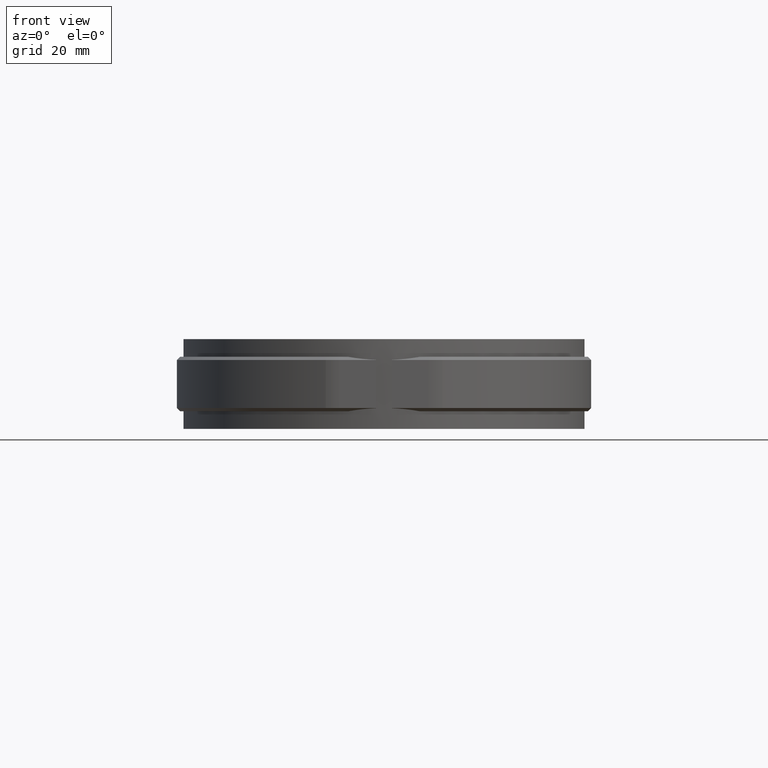
[diagram: clean part render]
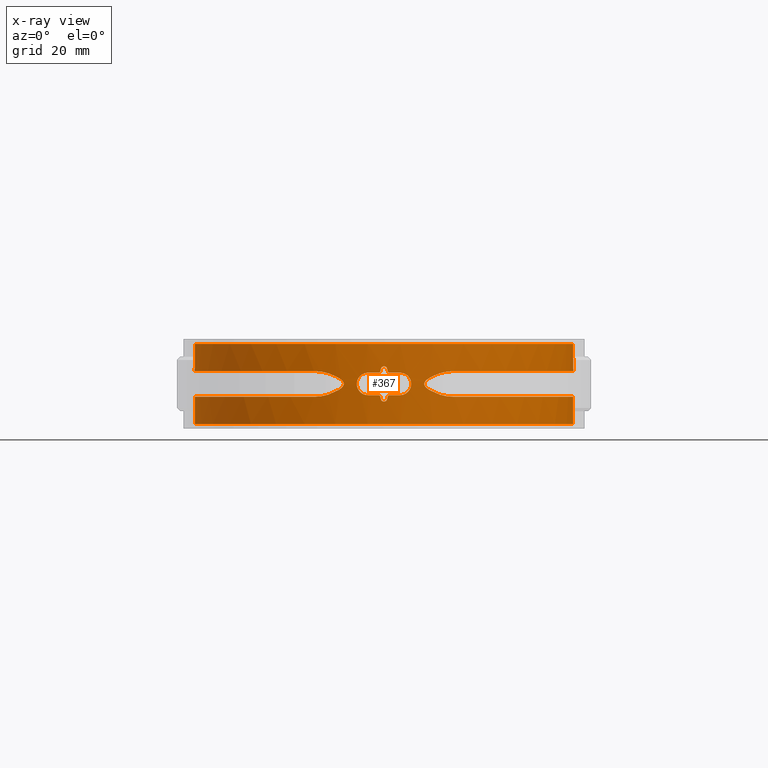
[diagram: x-ray — body ghosted, one internal face saturated and labeled with its STEP entity id]
A machine part, front view, then the same camera in x-ray: the body is ghosted and one INTERNAL B-rep face — a face not visible from any outside direction — is saturated and labeled: STEP entity #367.
In plain terms, the highlighted cylindrical surface (partial cylindrical patch) has radius 59.15 mm, axis along (0, 0, -1).
Its self-contained STEP definition (entity closure, byte-faithful):
#367 = ADVANCED_FACE( '', ( #701, #702 ), #703, .F. );
#701 = FACE_BOUND( '', #1406, .T. );
#702 = FACE_OUTER_BOUND( '', #1407, .T. );
#703 = CYLINDRICAL_SURFACE( '', #1408, 59.1500000000000 );
#1406 = EDGE_LOOP( '', ( #2817, #2818, #2819, #2820, #2821, #2822, #2823, #2824, #2825, #2826, #2827, #2828, #2829, #2830, #2831, #2832 ) );
#1407 = EDGE_LOOP( '', ( #2833, #2834, #2835, #2836, #2837, #2838, #2839, #2840, #2841, #2842, #2843, #2844, #2845, #2846, #2847, #2848 ) );
#1408 = AXIS2_PLACEMENT_3D( '', #2849, #2850, #2851 );
#2817 = ORIENTED_EDGE( '', *, *, #5997, .F. );
#2818 = ORIENTED_EDGE( '', *, *, #5998, .F. );
#2819 = ORIENTED_EDGE( '', *, *, #5999, .F. );
#2820 = ORIENTED_EDGE( '', *, *, #6000, .F. );
#2821 = ORIENTED_EDGE( '', *, *, #6001, .F. );
#2822 = ORIENTED_EDGE( '', *, *, #6002, .F. );
#2823 = ORIENTED_EDGE( '', *, *, #6003, .F. );
#2824 = ORIENTED_EDGE( '', *, *, #6004, .F. );
#2825 = ORIENTED_EDGE( '', *, *, #6005, .F. );
#2826 = ORIENTED_EDGE( '', *, *, #6006, .F. );
#2827 = ORIENTED_EDGE( '', *, *, #6007, .F. );
#2828 = ORIENTED_EDGE( '', *, *, #6008, .F. );
#2829 = ORIENTED_EDGE( '', *, *, #6009, .F. );
#2830 = ORIENTED_EDGE( '', *, *, #6010, .F. );
#2831 = ORIENTED_EDGE( '', *, *, #5994, .F. );
#2832 = ORIENTED_EDGE( '', *, *, #5990, .F. );
#2833 = ORIENTED_EDGE( '', *, *, #6011, .F. );
#2834 = ORIENTED_EDGE( '', *, *, #6012, .F. );
#2835 = ORIENTED_EDGE( '', *, *, #6013, .T. );
#2836 = ORIENTED_EDGE( '', *, *, #6014, .T. );
#2837 = ORIENTED_EDGE( '', *, *, #6015, .T. );
#2838 = ORIENTED_EDGE( '', *, *, #6016, .T. );
#2839 = ORIENTED_EDGE( '', *, *, #6017, .T. );
#2840 = ORIENTED_EDGE( '', *, *, #6018, .T. );
#2841 = ORIENTED_EDGE( '', *, *, #6019, .T. );
#2842 = ORIENTED_EDGE( '', *, *, #6020, .T. );
#2843 = ORIENTED_EDGE( '', *, *, #6021, .F. );
#2844 = ORIENTED_EDGE( '', *, *, #6022, .F. );
#2845 = ORIENTED_EDGE( '', *, *, #6023, .F. );
#2846 = ORIENTED_EDGE( '', *, *, #6024, .F. );
#2847 = ORIENTED_EDGE( '', *, *, #6025, .F. );
#2848 = ORIENTED_EDGE( '', *, *, #6026, .F. );
#2849 = CARTESIAN_POINT( '', ( -3.46944695195361E-015, 0.000000000000000, -12.5000000000000 ) );
#2850 = DIRECTION( '', ( 0.000000000000000, 0.000000000000000, -1.00000000000000 ) );
#2851 = DIRECTION( '', ( -1.00000000000000, 6.16283340149655E-017, 0.000000000000000 ) );
#5990 = EDGE_CURVE( '', #6901, #6902, #6903, .T. );
#5994 = EDGE_CURVE( '', #6902, #6909, #6910, .T. );
#5997 = EDGE_CURVE( '', #6914, #6901, #6915, .T. );
#5998 = EDGE_CURVE( '', #6916, #6914, #6917, .T. );
#5999 = EDGE_CURVE( '', #6918, #6916, #6919, .T. );
#6000 = EDGE_CURVE( '', #6920, #6918, #6921, .T. );
#6001 = EDGE_CURVE( '', #6922, #6920, #6923, .T. );
#6002 = EDGE_CURVE( '', #6924, #6922, #6925, .T. );
#6003 = EDGE_CURVE( '', #6926, #6924, #6927, .T. );
#6004 = EDGE_CURVE( '', #6928, #6926, #6929, .T. );
#6005 = EDGE_CURVE( '', #6930, #6928, #6931, .T. );
#6006 = EDGE_CURVE( '', #6932, #6930, #6933, .T. );
#6007 = EDGE_CURVE( '', #6934, #6932, #6935, .T. );
#6008 = EDGE_CURVE( '', #6936, #6934, #6937, .T. );
#6009 = EDGE_CURVE( '', #6938, #6936, #6939, .T. );
#6010 = EDGE_CURVE( '', #6909, #6938, #6940, .T. );
#6011 = EDGE_CURVE( '', #6941, #6942, #6943, .T. );
#6012 = EDGE_CURVE( '', #6944, #6941, #6945, .T. );
#6013 = EDGE_CURVE( '', #6944, #6946, #6947, .T. );
#6014 = EDGE_CURVE( '', #6946, #6948, #6949, .T. );
#6015 = EDGE_CURVE( '', #6948, #6950, #6951, .T. );
#6016 = EDGE_CURVE( '', #6950, #6952, #6953, .T. );
#6017 = EDGE_CURVE( '', #6952, #6954, #6955, .T. );
#6018 = EDGE_CURVE( '', #6954, #6956, #6957, .T. );
#6019 = EDGE_CURVE( '', #6956, #6958, #6959, .T. );
#6020 = EDGE_CURVE( '', #6958, #6960, #6961, .T. );
#6021 = EDGE_CURVE( '', #6962, #6960, #6963, .T. );
#6022 = EDGE_CURVE( '', #6964, #6962, #6965, .T. );
#6023 = EDGE_CURVE( '', #6966, #6964, #6967, .T. );
#6024 = EDGE_CURVE( '', #6968, #6966, #6969, .T. );
#6025 = EDGE_CURVE( '', #6970, #6968, #6971, .T. );
#6026 = EDGE_CURVE( '', #6942, #6970, #6972, .T. );
#6901 = VERTEX_POINT( '', #8411 );
#6902 = VERTEX_POINT( '', #8412 );
#6903 = B_SPLINE_CURVE_WITH_KNOTS( '', 3, ( #8413, #8414, #8415, #8416, #8417, #8418 ), .UNSPECIFIED., .F., .F., ( 4, 2, 4 ), ( 0.00156361018298651, 0.00189944055253514, 0.00223527092208378 ), .UNSPECIFIED. );
#6909 = VERTEX_POINT( '', #8431 );
#6910 = ELLIPSE( '', #8432, 269.461386027890, 59.1500000000000 );
#6914 = VERTEX_POINT( '', #8437 );
#6915 = CIRCLE( '', #8438, 59.1500000000000 );
#6916 = VERTEX_POINT( '', #8439 );
#6917 = B_SPLINE_CURVE_WITH_KNOTS( '', 3, ( #8440, #8441, #8442, #8443, #8444, #8445, #8446, #8447, #8448, #8449, #8450, #8451, #8452, #8453, #8454, #8455, #8456, #8457, #8458, #8459, #8460, #8461, #8462, #8463, #8464, #8465, #8466, #8467, #8468, #8469, #8470, #8471, #8472, #8473 ), .UNSPECIFIED., .F., .F., ( 4, 2, 2, 2, 2, 2, 2, 2, 2, 2, 2, 2, 2, 2, 2, 2, 4 ), ( 0.0109529596146863, 0.0116388413501820, 0.0123247230856777, 0.0130106048211735, 0.0136964865566692, 0.0143823682921649, 0.0150682500276607, 0.0157541317631564, 0.0164400134986521, 0.0171258952341478, 0.0178117769696436, 0.0184976587051393, 0.0191835404406350, 0.0198694221761308, 0.0205553039116265, 0.0212411856471222, 0.0219270673826179 ), .UNSPECIFIED. );
#6918 = VERTEX_POINT( '', #8474 );
#6919 = CIRCLE( '', #8475, 59.1500000000000 );
#6920 = VERTEX_POINT( '', #8476 );
#6921 = B_SPLINE_CURVE_WITH_KNOTS( '', 3, ( #8477, #8478, #8479, #8480, #8481, #8482 ), .UNSPECIFIED., .F., .F., ( 4, 2, 4 ), ( 0.00245575856649450, 0.00279123489339493, 0.00312671122029536 ), .UNSPECIFIED. );
#6922 = VERTEX_POINT( '', #8483 );
#6923 = ELLIPSE( '', #8484, 269.461248569472, 59.1500000000000 );
#6924 = VERTEX_POINT( '', #8485 );
#6925 = B_SPLINE_CURVE_WITH_KNOTS( '', 3, ( #8486, #8487, #8488, #8489, #8490, #8491, #8492, #8493, #8494, #8495 ), .UNSPECIFIED., .F., .F., ( 4, 2, 2, 2, 4 ), ( 0.00178339464918345, 0.00245495384245690, 0.00312651303573035, 0.00379807222900380, 0.00446963142227725 ), .UNSPECIFIED. );
#6926 = VERTEX_POINT( '', #8496 );
#6927 = ELLIPSE( '', #8497, 269.461386027947, 59.1500000000000 );
#6928 = VERTEX_POINT( '', #8498 );
#6929 = B_SPLINE_CURVE_WITH_KNOTS( '', 3, ( #8499, #8500, #8501, #8502, #8503, #8504 ), .UNSPECIFIED., .F., .F., ( 4, 2, 4 ), ( 0.000000000000000, 0.000335831884350517, 0.000671663768701035 ), .UNSPECIFIED. );
#6930 = VERTEX_POINT( '', #8505 );
#6931 = CIRCLE( '', #8506, 59.1500000000000 );
#6932 = VERTEX_POINT( '', #8507 );
#6933 = B_SPLINE_CURVE_WITH_KNOTS( '', 3, ( #8508, #8509, #8510, #8511, #8512, #8513, #8514, #8515, #8516, #8517, #8518, #8519, #8520, #8521, #8522, #8523, #8524, #8525, #8526, #8527, #8528, #8529, #8530, #8531, #8532, #8533, #8534, #8535, #8536, #8537, #8538, #8539, #8540, #8541 ), .UNSPECIFIED., .F., .F., ( 4, 2, 2, 2, 2, 2, 2, 2, 2, 2, 2, 2, 2, 2, 2, 2, 4 ), ( 0.000000000000000, 0.000685986528971007, 0.00137197305794201, 0.00205795958691302, 0.00274394611588403, 0.00342993264485503, 0.00411591917382604, 0.00480190570279705, 0.00548789223176805, 0.00617387876073906, 0.00685986528971007, 0.00754585181868108, 0.00823183834765208, 0.00891782487662309, 0.00960381140559410, 0.0102897979345651, 0.0109757844635361 ), .UNSPECIFIED. );
#6934 = VERTEX_POINT( '', #8542 );
#6935 = CIRCLE( '', #8543, 59.1500000000000 );
#6936 = VERTEX_POINT( '', #8544 );
#6937 = B_SPLINE_CURVE_WITH_KNOTS( '', 3, ( #8545, #8546, #8547, #8548, #8549, #8550 ), .UNSPECIFIED., .F., .F., ( 4, 2, 4 ), ( 0.000891800028253569, 0.00122762944381523, 0.00156345885937690 ), .UNSPECIFIED. );
#6938 = VERTEX_POINT( '', #8551 );
#6939 = ELLIPSE( '', #8552, 269.461248569451, 59.1500000000000 );
#6940 = B_SPLINE_CURVE_WITH_KNOTS( '', 3, ( #8553, #8554, #8555, #8556, #8557, #8558, #8559, #8560, #8561, #8562, #8563, #8564 ), .UNSPECIFIED., .F., .F., ( 4, 2, 2, 2, 2, 4 ), ( 0.00491060943855163, 0.00558181655932745, 0.00591742011971536, 0.00625302368010327, 0.00692423080087910, 0.00759543792165492 ), .UNSPECIFIED. );
#6941 = VERTEX_POINT( '', #8565 );
#6942 = VERTEX_POINT( '', #8566 );
#6943 = B_SPLINE_CURVE_WITH_KNOTS( '', 3, ( #8567, #8568, #8569, #8570, #8571, #8572, #8573, #8574, #8575, #8576, #8577, #8578, #8579, #8580, #8581, #8582, #8583, #8584, #8585, #8586, #8587, #8588, #8589, #8590, #8591, #8592, #8593, #8594, #8595, #8596, #8597, #8598, #8599, #8600, #8601, #8602, #8603, #8604, #8605, #8606, #8607, #8608, #8609, #8610, #8611, #8612, #8613, #8614, #8615, #8616, #8617, #8618, #8619, #8620, #8621, #8622, #8623, #8624, #8625, #8626, #8627, #8628 ), .UNSPECIFIED., .F., .F., ( 4, 2, 2, 2, 2, 2, 2, 2, 2, 2, 2, 2, 2, 2, 2, 2, 2, 2, 2, 2, 2, 2, 2, 2, 2, 2, 2, 2, 2, 2, 4 ), ( 0.00468982118014729, 0.00961516792310667, 0.0120778412945864, 0.0145405146660661, 0.0243912081519848, 0.0293165548949442, 0.0317792282664239, 0.0342419016379036, 0.0440925951238223, 0.0490179418667817, 0.0514806152382614, 0.0539432886097411, 0.0637939820956599, 0.0687193288386193, 0.0711820022100990, 0.0736446755815787, 0.0834953690674975, 0.0884207158104569, 0.0908833891819366, 0.0933460625534163, 0.103196756039335, 0.108122102782295, 0.113047449525254, 0.122898143011173, 0.127823489754132, 0.132748836497092, 0.142599529983010, 0.147524876725970, 0.149987550097449, 0.152450223468929, 0.162300916954848 ), .UNSPECIFIED. );
#6944 = VERTEX_POINT( '', #8629 );
#6945 = LINE( '', #8630, #8631 );
#6946 = VERTEX_POINT( '', #8632 );
#6947 = CIRCLE( '', #8633, 59.1500000000000 );
#6948 = VERTEX_POINT( '', #8634 );
#6949 = LINE( '', #8635, #8636 );
#6950 = VERTEX_POINT( '', #8637 );
#6951 = B_SPLINE_CURVE_WITH_KNOTS( '', 3, ( #8638, #8639, #8640, #8641, #8642, #8643, #8644, #8645, #8646, #8647, #8648, #8649, #8650, #8651, #8652, #8653, #8654, #8655, #8656, #8657, #8658, #8659, #8660, #8661, #8662, #8663, #8664, #8665, #8666, #8667, #8668, #8669, #8670, #8671, #8672, #8673, #8674, #8675, #8676, #8677, #8678, #8679, #8680, #8681, #8682, #8683, #8684, #8685, #8686, #8687, #8688, #8689, #8690, #8691, #8692, #8693, #8694, #8695, #8696, #8697, #8698, #8699 ), .UNSPECIFIED., .F., .F., ( 4, 2, 2, 2, 2, 2, 2, 2, 2, 2, 2, 2, 2, 2, 2, 2, 2, 2, 2, 2, 2, 2, 2, 2, 2, 2, 2, 2, 2, 2, 4 ), ( 0.00468982118014712, 0.00961516792310649, 0.0120778412945862, 0.0145405146660659, 0.0243912081519846, 0.0293165548949440, 0.0317792282664237, 0.0342419016379033, 0.0440925951238221, 0.0490179418667815, 0.0514806152382612, 0.0539432886097409, 0.0637939820956598, 0.0687193288386192, 0.0711820022100989, 0.0736446755815786, 0.0834953690674974, 0.0884207158104568, 0.0908833891819365, 0.0933460625534162, 0.103196756039335, 0.108122102782294, 0.113047449525254, 0.122898143011173, 0.127823489754132, 0.132748836497091, 0.142599529983010, 0.147524876725970, 0.149987550097449, 0.152450223468929, 0.162300916954848 ), .UNSPECIFIED. );
#6952 = VERTEX_POINT( '', #8700 );
#6953 = B_SPLINE_CURVE_WITH_KNOTS( '', 3, ( #8701, #8702, #8703, #8704, #8705, #8706, #8707, #8708 ), .UNSPECIFIED., .F., .F., ( 4, 2, 2, 4 ), ( 0.000000000000000, 0.00237770030442117, 0.00356655045663175, 0.00475540060884234 ), .UNSPECIFIED. );
#6954 = VERTEX_POINT( '', #8709 );
#6955 = B_SPLINE_CURVE_WITH_KNOTS( '', 3, ( #8710, #8711, #8712, #8713, #8714, #8715, #8716, #8717, #8718, #8719, #8720, #8721, #8722, #8723, #8724, #8725, #8726, #8727, #8728, #8729, #8730, #8731, #8732, #8733, #8734, #8735, #8736, #8737, #8738, #8739, #8740, #8741 ), .UNSPECIFIED., .F., .F., ( 4, 2, 2, 2, 2, 2, 2, 2, 2, 2, 2, 2, 2, 2, 2, 4 ), ( 0.000000000000000, 0.00156029649719092, 0.00312059299438184, 0.00390074124297730, 0.00468088949157276, 0.00546103774016822, 0.00585111186446594, 0.00624118598876367, 0.00663126011306140, 0.00702133423735913, 0.00741140836165685, 0.00780148248595458, 0.00858163073455004, 0.00936177898314549, 0.0109220754803364, 0.0124823719775273 ), .UNSPECIFIED. );
#6956 = VERTEX_POINT( '', #8742 );
#6957 = B_SPLINE_CURVE_WITH_KNOTS( '', 3, ( #8743, #8744, #8745, #8746, #8747, #8748 ), .UNSPECIFIED., .F., .F., ( 4, 2, 4 ), ( 0.000000000000000, 0.00237200404577442, 0.00474400809154884 ), .UNSPECIFIED. );
#6958 = VERTEX_POINT( '', #8749 );
#6959 = B_SPLINE_CURVE_WITH_KNOTS( '', 3, ( #8750, #8751, #8752, #8753, #8754, #8755, #8756, #8757, #8758, #8759, #8760, #8761, #8762, #8763, #8764, #8765, #8766, #8767, #8768, #8769, #8770, #8771, #8772, #8773, #8774, #8775, #8776, #8777, #8778, #8779, #8780, #8781, #8782, #8783, #8784, #8785, #8786, #8787, #8788, #8789, #8790, #8791, #8792, #8793, #8794, #8795, #8796, #8797, #8798, #8799, #8800, #8801, #8802, #8803, #8804, #8805, #8806, #8807, #8808, #8809 ), .UNSPECIFIED., .F., .F., ( 4, 2, 2, 2, 2, 2, 2, 2, 2, 2, 2, 2, 2, 2, 2, 2, 2, 2, 2, 2, 2, 2, 2, 2, 2, 2, 2, 2, 2, 4 ), ( 0.000000000000000, 0.00985053376518982, 0.0147758006477847, 0.0197010675303797, 0.0295516012955695, 0.0320142347368670, 0.0344768681781644, 0.0394021350607593, 0.0492526688259491, 0.0517153022672466, 0.0541779357085441, 0.0591032025911390, 0.0689537363563288, 0.0714163697976263, 0.0738790032389238, 0.0788042701215187, 0.0886548038867085, 0.0911174373280060, 0.0935800707693035, 0.0985053376518984, 0.108355871417088, 0.110818504858386, 0.113281138299683, 0.118206405182278, 0.128056938947468, 0.132982205830063, 0.137907472712658, 0.147758006477848, 0.152683273360443, 0.157608540243037 ), .UNSPECIFIED. );
#6960 = VERTEX_POINT( '', #8810 );
#6961 = LINE( '', #8811, #8812 );
#6962 = VERTEX_POINT( '', #8813 );
#6963 = CIRCLE( '', #8814, 59.1500000000000 );
#6964 = VERTEX_POINT( '', #8815 );
#6965 = LINE( '', #8816, #8817 );
#6966 = VERTEX_POINT( '', #8818 );
#6967 = B_SPLINE_CURVE_WITH_KNOTS( '', 3, ( #8819, #8820, #8821, #8822, #8823, #8824, #8825, #8826, #8827, #8828, #8829, #8830, #8831, #8832, #8833, #8834, #8835, #8836, #8837, #8838, #8839, #8840, #8841, #8842, #8843, #8844, #8845, #8846, #8847, #8848, #8849, #8850, #8851, #8852, #8853, #8854, #8855, #8856, #8857, #8858, #8859, #8860, #8861, #8862, #8863, #8864, #8865, #8866, #8867, #8868, #8869, #8870, #8871, #8872, #8873, #8874, #8875, #8876, #8877, #8878 ), .UNSPECIFIED., .F., .F., ( 4, 2, 2, 2, 2, 2, 2, 2, 2, 2, 2, 2, 2, 2, 2, 2, 2, 2, 2, 2, 2, 2, 2, 2, 2, 2, 2, 2, 2, 4 ), ( 0.000000000000000, 0.00985053376518984, 0.0147758006477848, 0.0197010675303797, 0.0295516012955695, 0.0320142347368670, 0.0344768681781644, 0.0394021350607593, 0.0492526688259491, 0.0517153022672466, 0.0541779357085441, 0.0591032025911390, 0.0689537363563288, 0.0714163697976263, 0.0738790032389237, 0.0788042701215187, 0.0886548038867085, 0.0911174373280059, 0.0935800707693034, 0.0985053376518983, 0.108355871417088, 0.110818504858386, 0.113281138299683, 0.118206405182278, 0.128056938947468, 0.132982205830063, 0.137907472712658, 0.147758006477848, 0.152683273360442, 0.157608540243037 ), .UNSPECIFIED. );
#6968 = VERTEX_POINT( '', #8879 );
#6969 = B_SPLINE_CURVE_WITH_KNOTS( '', 3, ( #8880, #8881, #8882, #8883, #8884, #8885 ), .UNSPECIFIED., .F., .F., ( 4, 2, 4 ), ( 0.000000000000000, 0.00237200404577442, 0.00474400809154884 ), .UNSPECIFIED. );
#6970 = VERTEX_POINT( '', #8886 );
#6971 = B_SPLINE_CURVE_WITH_KNOTS( '', 3, ( #8887, #8888, #8889, #8890, #8891, #8892, #8893, #8894, #8895, #8896, #8897, #8898, #8899, #8900, #8901, #8902, #8903, #8904, #8905, #8906, #8907, #8908, #8909, #8910, #8911, #8912, #8913, #8914, #8915, #8916, #8917, #8918 ), .UNSPECIFIED., .F., .F., ( 4, 2, 2, 2, 2, 2, 2, 2, 2, 2, 2, 2, 2, 2, 2, 4 ), ( 0.000000000000000, 0.00156029649719092, 0.00312059299438184, 0.00390074124297730, 0.00468088949157276, 0.00546103774016822, 0.00585111186446594, 0.00624118598876367, 0.00663126011306140, 0.00702133423735913, 0.00741140836165685, 0.00780148248595458, 0.00858163073455004, 0.00936177898314549, 0.0109220754803364, 0.0124823719775273 ), .UNSPECIFIED. );
#6972 = B_SPLINE_CURVE_WITH_KNOTS( '', 3, ( #8919, #8920, #8921, #8922, #8923, #8924, #8925, #8926 ), .UNSPECIFIED., .F., .F., ( 4, 2, 2, 4 ), ( 0.000000000000000, 0.00237770030442117, 0.00356655045663175, 0.00475540060884234 ), .UNSPECIFIED. );
#8411 = CARTESIAN_POINT( '', ( 1.65000000000025, -59.1269819963779, -3.49999999999744 ) );
#8412 = CARTESIAN_POINT( '', ( 1.16219512100909, -59.1385813365581, -3.89024390662627 ) );
#8413 = CARTESIAN_POINT( '', ( 1.65000000000041, -59.1269819963779, -3.50000000000000 ) );
#8414 = CARTESIAN_POINT( '', ( 1.53787534715059, -59.1301109515682, -3.49999999999991 ) );
#8415 = CARTESIAN_POINT( '', ( 1.42526288771543, -59.1328910190796, -3.53948763157794 ) );
#8416 = CARTESIAN_POINT( '', ( 1.25009841239619, -59.1368533871457, -3.67959848418016 ) );
#8417 = CARTESIAN_POINT( '', ( 1.18681797368062, -59.1380974467083, -3.78080900147757 ) );
#8418 = CARTESIAN_POINT( '', ( 1.16219512100909, -59.1385813365581, -3.89024390662627 ) );
#8431 = CARTESIAN_POINT( '', ( 0.975609999999952, -59.1419536803435, -4.71951199999997 ) );
#8432 = AXIS2_PLACEMENT_3D( '', #12340, #12341, #12342 );
#8437 = CARTESIAN_POINT( '', ( 5.00000000000000, -58.9382940031352, -3.50000000000000 ) );
#8438 = AXIS2_PLACEMENT_3D( '', #12347, #12348, #12349 );
#8439 = CARTESIAN_POINT( '', ( 5.00000000000000, -58.9382940031352, 3.50000000000002 ) );
#8440 = CARTESIAN_POINT( '', ( 5.00000000000000, -58.9382940031352, 3.50000000000002 ) );
#8441 = CARTESIAN_POINT( '', ( 5.22824489806631, -58.9189309640511, 3.50000000000002 ) );
#8442 = CARTESIAN_POINT( '', ( 5.45503924296903, -58.8983555755730, 3.47788774252241 ) );
#8443 = CARTESIAN_POINT( '', ( 5.90568353910331, -58.8548778317050, 3.38858395044697 ) );
#8444 = CARTESIAN_POINT( '', ( 6.12639761048374, -58.8322571120304, 3.32159434847437 ) );
#8445 = CARTESIAN_POINT( '', ( 6.54692724603367, -58.7869455594772, 3.14782094284269 ) );
#8446 = CARTESIAN_POINT( '', ( 6.74981081990076, -58.7639319309869, 3.03991232840227 ) );
#8447 = CARTESIAN_POINT( '', ( 7.13259335308676, -58.7187002083119, 2.78477116836985 ) );
#8448 = CARTESIAN_POINT( '', ( 7.30880384003798, -58.6969367199381, 2.64033602537134 ) );
#8449 = CARTESIAN_POINT( '', ( 7.63173601190476, -58.6558232345363, 2.31860196288441 ) );
#8450 = CARTESIAN_POINT( '', ( 7.77974522441628, -58.6362909403846, 2.13902933681913 ) );
#8451 = CARTESIAN_POINT( '', ( 8.03473718512942, -58.6018945885554, 1.75863590138232 ) );
#8452 = CARTESIAN_POINT( '', ( 8.14264526452255, -58.5869248586119, 1.55769352196802 ) );
#8453 = CARTESIAN_POINT( '', ( 8.31908357062688, -58.5621318331003, 1.13415722816629 ) );
#8454 = CARTESIAN_POINT( '', ( 8.38707340822236, -58.5523830033226, 0.911061996467562 ) );
#8455 = CARTESIAN_POINT( '', ( 8.47682747689804, -58.5394563661946, 0.462569919019083 ) );
#8456 = CARTESIAN_POINT( '', ( 8.49977997378194, -58.5361105681444, 0.234776655006030 ) );
#8457 = CARTESIAN_POINT( '', ( 8.50021690848461, -58.5360471210471, -0.228169972124670 ) );
#8458 = CARTESIAN_POINT( '', ( 8.47752000331168, -58.5393557952760, -0.457285626833753 ) );
#8459 = CARTESIAN_POINT( '', ( 8.38849806920354, -58.5521786313322, -0.905724214618023 ) );
#8460 = CARTESIAN_POINT( '', ( 8.32117424350995, -58.5618346136700, -1.12814021961073 ) );
#8461 = CARTESIAN_POINT( '', ( 8.14498362817257, -58.5865996265912, -1.55305398791663 ) );
#8462 = CARTESIAN_POINT( '', ( 8.03724483212294, -58.6015497722050, -1.75426833561602 ) );
#8463 = CARTESIAN_POINT( '', ( 7.78310958925717, -58.6358435201312, -2.13462281862332 ) );
#8464 = CARTESIAN_POINT( '', ( 7.63526385804589, -58.6553639513636, -2.31461556863497 ) );
#8465 = CARTESIAN_POINT( '', ( 7.31245262321469, -58.6964821014185, -2.63716205370049 ) );
#8466 = CARTESIAN_POINT( '', ( 7.13646180504674, -58.7182285162971, -2.78177334555648 ) );
#8467 = CARTESIAN_POINT( '', ( 6.75468829865985, -58.7633698248741, -3.03707111622665 ) );
#8468 = CARTESIAN_POINT( '', ( 6.55127538780570, -58.7864607081289, -3.14567998882509 ) );
#8469 = CARTESIAN_POINT( '', ( 6.13099741972316, -58.8317774883149, -3.32003053562552 ) );
#8470 = CARTESIAN_POINT( '', ( 5.91142691346631, -58.8543036063288, -3.38709053406309 ) );
#8471 = CARTESIAN_POINT( '', ( 5.45956351357300, -58.8979387362618, -3.47733844794017 ) );
#8472 = CARTESIAN_POINT( '', ( 5.23107764807910, -58.9186906491539, -3.50000000000000 ) );
#8473 = CARTESIAN_POINT( '', ( 5.00000000000000, -58.9382940031352, -3.50000000000000 ) );
#8474 = CARTESIAN_POINT( '', ( 1.65000000000001, -59.1269819963779, 3.50000000000002 ) );
#8475 = AXIS2_PLACEMENT_3D( '', #12350, #12351, #12352 );
#8476 = CARTESIAN_POINT( '', ( 1.16219499999994, -59.1385813389362, 3.89024400000002 ) );
#8477 = CARTESIAN_POINT( '', ( 1.16219499999994, -59.1385813389362, 3.89024400000001 ) );
#8478 = CARTESIAN_POINT( '', ( 1.18676331042299, -59.1380985210044, 3.78105150704262 ) );
#8479 = CARTESIAN_POINT( '', ( 1.25006723811850, -59.1368536848149, 3.67972459623765 ) );
#8480 = CARTESIAN_POINT( '', ( 1.42474336575442, -59.1329031773407, 3.53980225768696 ) );
#8481 = CARTESIAN_POINT( '', ( 1.53660862172912, -59.1301463008559, 3.50000000000001 ) );
#8482 = CARTESIAN_POINT( '', ( 1.64999999785401, -59.1269819964378, 3.50000000000001 ) );
#8483 = CARTESIAN_POINT( '', ( 0.975609757981783, -59.1419536843359, 4.71951218674747 ) );
#8484 = AXIS2_PLACEMENT_3D( '', #12353, #12354, #12355 );
#8485 = CARTESIAN_POINT( '', ( -0.975610000000050, -59.1419536803435, 4.71951200000002 ) );
#8486 = CARTESIAN_POINT( '', ( -0.975610000000050, -59.1419536803435, 4.71951200000002 ) );
#8487 = CARTESIAN_POINT( '', ( -0.926373046907988, -59.1427658967283, 4.93834300919890 ) );
#8488 = CARTESIAN_POINT( '', ( -0.799841406379386, -59.1448512763826, 5.14075097325568 ) );
#8489 = CARTESIAN_POINT( '', ( -0.449553759638256, -59.1485509560290, 5.42098282537313 ) );
#8490 = CARTESIAN_POINT( '', ( -0.224302080393067, -59.1499999987892, 5.49999995424814 ) );
#8491 = CARTESIAN_POINT( '', ( 0.224301441828264, -59.1500000012107, 5.50000005261897 ) );
#8492 = CARTESIAN_POINT( '', ( 0.449554852714761, -59.1485509458412, 5.42098203302658 ) );
#8493 = CARTESIAN_POINT( '', ( 0.799841229742383, -59.1448512768912, 5.14075071244304 ) );
#8494 = CARTESIAN_POINT( '', ( 0.926373449370451, -59.1427658898877, 4.93834013599613 ) );
#8495 = CARTESIAN_POINT( '', ( 0.975609757981783, -59.1419536843359, 4.71951218674747 ) );
#8496 = CARTESIAN_POINT( '', ( -1.16219512100915, -59.1385813365581, 3.89024390662631 ) );
#8497 = AXIS2_PLACEMENT_3D( '', #12356, #12357, #12358 );
#8498 = CARTESIAN_POINT( '', ( -1.65000000000006, -59.1269819963779, 3.50000000000002 ) );
#8499 = CARTESIAN_POINT( '', ( -1.65000000000006, -59.1269819963779, 3.50000000000002 ) );
#8500 = CARTESIAN_POINT( '', ( -1.53648893019326, -59.1301496409770, 3.50000000000002 ) );
#8501 = CARTESIAN_POINT( '', ( -1.42634104271876, -59.1328666299402, 3.53862532562844 ) );
#8502 = CARTESIAN_POINT( '', ( -1.24902074334823, -59.1368777652923, 3.68046040142328 ) );
#8503 = CARTESIAN_POINT( '', ( -1.18712097375993, -59.1380914921317, 3.77946233440469 ) );
#8504 = CARTESIAN_POINT( '', ( -1.16219512100915, -59.1385813365581, 3.89024390662631 ) );
#8505 = CARTESIAN_POINT( '', ( -5.00000000000000, -58.9382940031352, 3.50000000000002 ) );
#8506 = AXIS2_PLACEMENT_3D( '', #12359, #12360, #12361 );
#8507 = CARTESIAN_POINT( '', ( -5.00000000000000, -58.9382940031352, -3.49999999999997 ) );
#8508 = CARTESIAN_POINT( '', ( -5.00000000000000, -58.9382940031352, -3.49999999999997 ) );
#8509 = CARTESIAN_POINT( '', ( -5.23113393727774, -58.9186858738885, -3.49999999999997 ) );
#8510 = CARTESIAN_POINT( '', ( -5.45829304526817, -58.8980465992035, -3.47733031164556 ) );
#8511 = CARTESIAN_POINT( '', ( -5.90502139646889, -58.8549367383672, -3.38862728602064 ) );
#8512 = CARTESIAN_POINT( '', ( -6.12686503996957, -58.8322134550922, -3.32154238762043 ) );
#8513 = CARTESIAN_POINT( '', ( -6.55016104380307, -58.7865903548061, -3.14634222381168 ) );
#8514 = CARTESIAN_POINT( '', ( -6.75090442520136, -58.7638016484987, -3.03915305851685 ) );
#8515 = CARTESIAN_POINT( '', ( -7.13085626066223, -58.7189065270469, -2.78595929899893 ) );
#8516 = CARTESIAN_POINT( '', ( -7.31092196965499, -58.6966730232348, -2.63850308251426 ) );
#8517 = CARTESIAN_POINT( '', ( -7.63391458821925, -58.6555398244931, -2.31615042867193 ) );
#8518 = CARTESIAN_POINT( '', ( -7.77890976021455, -58.6364031368231, -2.14022795312576 ) );
#8519 = CARTESIAN_POINT( '', ( -8.03512281265149, -58.6018430705657, -1.75810826142166 ) );
#8520 = CARTESIAN_POINT( '', ( -8.14440062496408, -58.5866799412181, -1.55398497775370 ) );
#8521 = CARTESIAN_POINT( '', ( -8.31963137748019, -58.5620530874515, -1.13233039304245 ) );
#8522 = CARTESIAN_POINT( '', ( -8.38704098064781, -58.5523879459654, -0.911816877109931 ) );
#8523 = CARTESIAN_POINT( '', ( -8.47755284662700, -58.5393516219522, -0.458347925583515 ) );
#8524 = CARTESIAN_POINT( '', ( -8.49989644798060, -58.5360936549791, -0.230502362007420 ) );
#8525 = CARTESIAN_POINT( '', ( -8.50010284078596, -58.5360636847656, 0.227346848230292 ) );
#8526 = CARTESIAN_POINT( '', ( -8.47724394764714, -58.5393961013657, 0.459871560441286 ) );
#8527 = CARTESIAN_POINT( '', ( -8.38737786871824, -58.5523394353107, 0.910153008053730 ) );
#8528 = CARTESIAN_POINT( '', ( -8.32092679134615, -58.5618696327920, 1.12880638986667 ) );
#8529 = CARTESIAN_POINT( '', ( -8.14492048343049, -58.5866082639511, 1.55313675257002 ) );
#8530 = CARTESIAN_POINT( '', ( -8.03493173870084, -58.6018668199003, 1.75820025071419 ) );
#8531 = CARTESIAN_POINT( '', ( -7.78092949354740, -58.6361327087604, 2.13740729204878 ) );
#8532 = CARTESIAN_POINT( '', ( -7.63603524568537, -58.6552693158343, 2.31401339205875 ) );
#8533 = CARTESIAN_POINT( '', ( -7.30911366603318, -58.6969037531232, 2.64032836451484 ) );
#8534 = CARTESIAN_POINT( '', ( -7.13226302997141, -58.7187337486210, 2.78483345513150 ) );
#8535 = CARTESIAN_POINT( '', ( -6.75348658879435, -58.7635030258162, 3.03761876882549 ) );
#8536 = CARTESIAN_POINT( '', ( -6.54910834545342, -58.7867077009703, 3.14685973012906 ) );
#8537 = CARTESIAN_POINT( '', ( -6.12577790222617, -58.8323267220701, 3.32191013453413 ) );
#8538 = CARTESIAN_POINT( '', ( -5.90794186898696, -58.8546459847013, 3.38788974124184 ) );
#8539 = CARTESIAN_POINT( '', ( -5.45999732006724, -58.8978909671366, 3.47714794074141 ) );
#8540 = CARTESIAN_POINT( '', ( -5.22826700648202, -58.9189290884950, 3.50000000000000 ) );
#8541 = CARTESIAN_POINT( '', ( -5.00000000000000, -58.9382940031352, 3.50000000000000 ) );
#8542 = CARTESIAN_POINT( '', ( -1.65000000000001, -59.1269819963779, -3.49999999999997 ) );
#8543 = AXIS2_PLACEMENT_3D( '', #12362, #12363, #12364 );
#8544 = CARTESIAN_POINT( '', ( -1.16219500000005, -59.1385813389362, -3.89024399999997 ) );
#8545 = CARTESIAN_POINT( '', ( -1.16219500000005, -59.1385813389362, -3.89024399999997 ) );
#8546 = CARTESIAN_POINT( '', ( -1.18681752081675, -59.1380974556584, -3.78081057195482 ) );
#8547 = CARTESIAN_POINT( '', ( -1.25009956678183, -59.1368533601801, -3.67959770747304 ) );
#8548 = CARTESIAN_POINT( '', ( -1.42526058280910, -59.1328910720709, -3.53948925650089 ) );
#8549 = CARTESIAN_POINT( '', ( -1.53787536736017, -59.1301109510042, -3.49999999951875 ) );
#8550 = CARTESIAN_POINT( '', ( -1.65000000000001, -59.1269819963779, -3.49999999999998 ) );
#8551 = CARTESIAN_POINT( '', ( -0.975609757981881, -59.1419536843359, -4.71951218674741 ) );
#8552 = AXIS2_PLACEMENT_3D( '', #12365, #12366, #12367 );
#8553 = CARTESIAN_POINT( '', ( 0.975609999999953, -59.1419536803435, -4.71951199999998 ) );
#8554 = CARTESIAN_POINT( '', ( 0.926454011413338, -59.1427645611319, -4.93798316677718 ) );
#8555 = CARTESIAN_POINT( '', ( 0.799778405057273, -59.1448511275669, -5.14070019824763 ) );
#8556 = CARTESIAN_POINT( '', ( 0.537570049023446, -59.1476217488261, -5.35061982679733 ) );
#8557 = CARTESIAN_POINT( '', ( 0.437142418538376, -59.1484789737766, -5.40633456530899 ) );
#8558 = CARTESIAN_POINT( '', ( 0.225879029608867, -59.1496630342841, -5.48056842809892 ) );
#8559 = CARTESIAN_POINT( '', ( 0.112751380190948, -59.1500013643717, -5.50008071730835 ) );
#8560 = CARTESIAN_POINT( '', ( -0.227643258748741, -59.1499972583466, -5.49983781184761 ) );
#8561 = CARTESIAN_POINT( '', ( -0.447823767109204, -59.1485700646026, -5.42247070983963 ) );
#8562 = CARTESIAN_POINT( '', ( -0.802130468049641, -59.1448262616928, -5.13881534631159 ) );
#8563 = CARTESIAN_POINT( '', ( -0.925790721361428, -59.1427755026092, -4.94093003720521 ) );
#8564 = CARTESIAN_POINT( '', ( -0.975609757981881, -59.1419536843359, -4.71951218674741 ) );
#8565 = CARTESIAN_POINT( '', ( 6.66210780370072, 58.7736235024851, -3.99498390196977 ) );
#8566 = CARTESIAN_POINT( '', ( 21.8284965557793, -54.9748969213661, -3.99692314191150 ) );
#8567 = CARTESIAN_POINT( '', ( 6.66210780370070, 58.7736235024850, -3.99498390196979 ) );
#8568 = CARTESIAN_POINT( '', ( 8.29347137069140, 58.5887051785389, -3.99392877329981 ) );
#8569 = CARTESIAN_POINT( '', ( 9.91674885791248, 58.3360289212362, -3.99276330832793 ) );
#8570 = CARTESIAN_POINT( '', ( 12.3394272879478, 57.8544635595042, -3.99163677977630 ) );
#8571 = CARTESIAN_POINT( '', ( 13.1434004173400, 57.6770779751706, -3.99136020140887 ) );
#8572 = CARTESIAN_POINT( '', ( 14.7364930308626, 57.2907503130809, -3.99106038269121 ) );
#8573 = CARTESIAN_POINT( '', ( 15.5267810687767, 57.0815820733348, -3.99103646873853 ) );
#8574 = CARTESIAN_POINT( '', ( 19.4473729407248, 55.9568517998081, -3.99154940970025 ) );
#8575 = CARTESIAN_POINT( '', ( 22.4857573039927, 54.8062223886806, -3.99444245172039 ) );
#8576 = CARTESIAN_POINT( '', ( 26.8969941632919, 52.7060376379475, -3.99692509947674 ) );
#8577 = CARTESIAN_POINT( '', ( 28.3428947129458, 51.9432909637838, -3.99712244597482 ) );
#8578 = CARTESIAN_POINT( '', ( 30.4739236666925, 50.7024470866146, -3.99627585606127 ) );
#8579 = CARTESIAN_POINT( '', ( 31.1779563158694, 50.2725622061666, -3.99586324835722 ) );
#8580 = CARTESIAN_POINT( '', ( 32.5601510460025, 49.3885820273133, -3.99497124977218 ) );
#8581 = CARTESIAN_POINT( '', ( 33.2400161600288, 48.9335270900550, -3.99449130766364 ) );
#8582 = CARTESIAN_POINT( '', ( 36.5840199707859, 46.5939046169254, -3.99227490163551 ) );
#8583 = CARTESIAN_POINT( '', ( 39.0833158268012, 44.5175992746196, -3.99153861579370 ) );
#8584 = CARTESIAN_POINT( '', ( 42.5706324571501, 41.0988282375120, -3.99328181064779 ) );
#8585 = CARTESIAN_POINT( '', ( 43.6892480033188, 39.9082645532867, -3.99424854533329 ) );
#8586 = CARTESIAN_POINT( '', ( 45.2996593567521, 38.0438921490674, -3.99561962919314 ) );
#8587 = CARTESIAN_POINT( '', ( 45.8260217892516, 37.4081866513094, -3.99605784514800 ) );
#8588 = CARTESIAN_POINT( '', ( 46.8467362211201, 36.1217387039572, -3.99670964772883 ) );
#8589 = CARTESIAN_POINT( '', ( 47.3421289286342, 35.4698806926294, -3.99692411152718 ) );
#8590 = CARTESIAN_POINT( '', ( 49.7454476578328, 32.1681000812672, -3.99691029689679 ) );
#8591 = CARTESIAN_POINT( '', ( 51.4339349723360, 29.3915687408125, -3.99369247588869 ) );
#8592 = CARTESIAN_POINT( '', ( 53.6194672280384, 25.0264480925163, -3.99169681879205 ) );
#8593 = CARTESIAN_POINT( '', ( 54.2898197317342, 23.5378522651331, -3.99141902038168 ) );
#8594 = CARTESIAN_POINT( '', ( 55.2058953802614, 21.2533466589026, -3.99175149182344 ) );
#8595 = CARTESIAN_POINT( '', ( 55.4969434527325, 20.4813880900828, -3.99198248663402 ) );
#8596 = CARTESIAN_POINT( '', ( 56.0445814114421, 18.9315315045721, -3.99263443844821 ) );
#8597 = CARTESIAN_POINT( '', ( 56.3013729015263, 18.1534000226891, -3.99305463930975 ) );
#8598 = CARTESIAN_POINT( '', ( 57.5016008498584, 14.2469915207176, -3.99538572211179 ) );
#8599 = CARTESIAN_POINT( '', ( 58.1955516979866, 11.0717815613911, -3.99772526001319 ) );
#8600 = CARTESIAN_POINT( '', ( 58.8429610340090, 6.23493847957960, -3.99573839956068 ) );
#8601 = CARTESIAN_POINT( '', ( 58.9928455325668, 4.61025690147826, -3.99460702885780 ) );
#8602 = CARTESIAN_POINT( '', ( 59.1164436266840, 2.15419152231818, -3.99318093021492 ) );
#8603 = CARTESIAN_POINT( '', ( 59.1407534145743, 1.33064793464713, -3.99274529505808 ) );
#8604 = CARTESIAN_POINT( '', ( 59.1548840362657, -0.314695130911619, -3.99205995590378 ) );
#8605 = CARTESIAN_POINT( '', ( 59.1447702334892, -1.13474528869814, -3.99181080341851 ) );
#8606 = CARTESIAN_POINT( '', ( 59.0097948281189, -5.22211641219413, -3.99115149071160 ) );
#8607 = CARTESIAN_POINT( '', ( 58.6334339835906, -8.45106073713373, -3.99294754862582 ) );
#8608 = CARTESIAN_POINT( '', ( 57.6734304722464, -13.2341336941888, -3.99589182939931 ) );
#8609 = CARTESIAN_POINT( '', ( 57.2871829086801, -14.8183828357782, -3.99682735300644 ) );
#8610 = CARTESIAN_POINT( '', ( 56.3792591514774, -17.9662164355995, -3.99700214341537 ) );
#8611 = CARTESIAN_POINT( '', ( 55.8552378620869, -19.5344561724801, -3.99618500542856 ) );
#8612 = CARTESIAN_POINT( '', ( 54.1062555011260, -24.1237624342946, -3.99346817579094 ) );
#8613 = CARTESIAN_POINT( '', ( 52.7000241339695, -27.0555305052667, -3.99168304669042 ) );
#8614 = CARTESIAN_POINT( '', ( 50.2377755283537, -31.2654978150572, -3.99233021524089 ) );
#8615 = CARTESIAN_POINT( '', ( 49.3579073627121, -32.6373789897318, -3.99301063898122 ) );
#8616 = CARTESIAN_POINT( '', ( 47.4775041088703, -35.3169666044192, -3.99476455327142 ) );
#8617 = CARTESIAN_POINT( '', ( 46.4722879931574, -36.6296785330563, -3.99584009436256 ) );
#8618 = CARTESIAN_POINT( '', ( 43.3238854888553, -40.4042206850301, -3.99769492244038 ) );
#8619 = CARTESIAN_POINT( '', ( 41.0401002896295, -42.7200131333517, -3.99525524866220 ) );
#8620 = CARTESIAN_POINT( '', ( 37.3437340990255, -45.8999971352442, -3.99231003777610 ) );
#8621 = CARTESIAN_POINT( '', ( 36.0662643295795, -46.9107882706644, -3.99155024653642 ) );
#8622 = CARTESIAN_POINT( '', ( 34.0807491497780, -48.3517712406325, -3.99119243593619 ) );
#8623 = CARTESIAN_POINT( '', ( 33.4073441770807, -48.8195488543555, -3.99119777066089 ) );
#8624 = CARTESIAN_POINT( '', ( 32.0369977392890, -49.7295663681228, -3.99146091577670 ) );
#8625 = CARTESIAN_POINT( '', ( 31.3407789105030, -50.1712398532379, -3.99171907109190 ) );
#8626 = CARTESIAN_POINT( '', ( 27.8262662221199, -52.2993795965712, -3.99350190392941 ) );
#8627 = CARTESIAN_POINT( '', ( 24.8894567579437, -53.7596322632230, -3.99697929690472 ) );
#8628 = CARTESIAN_POINT( '', ( 21.8264830326589, -54.9756958885020, -3.99691951002852 ) );
#8629 = CARTESIAN_POINT( '', ( 6.66210780370073, 58.7736235024851, -12.5000000000000 ) );
#8630 = CARTESIAN_POINT( '', ( 6.66210780370073, 58.7736235024851, -12.5000000000000 ) );
#8631 = VECTOR( '', #12368, 1000.00000000000 );
#8632 = CARTESIAN_POINT( '', ( -6.66210780370070, 58.7736235024851, -12.5000000000000 ) );
#8633 = AXIS2_PLACEMENT_3D( '', #12369, #12370, #12371 );
#8634 = CARTESIAN_POINT( '', ( -6.66210780370055, 58.7736235024851, -3.99498390196979 ) );
#8635 = CARTESIAN_POINT( '', ( -6.66210780370070, 58.7736235024851, -12.5000000000000 ) );
#8636 = VECTOR( '', #12372, 1000.00000000000 );
#8637 = CARTESIAN_POINT( '', ( -21.8284965557793, -54.9748969213661, -3.99692314191150 ) );
#8638 = CARTESIAN_POINT( '', ( -6.66210780370054, 58.7736235024851, -3.99498390196978 ) );
#8639 = CARTESIAN_POINT( '', ( -8.29347137069124, 58.5887051785390, -3.99392877329981 ) );
#8640 = CARTESIAN_POINT( '', ( -9.91674885791232, 58.3360289212362, -3.99276330832792 ) );
#8641 = CARTESIAN_POINT( '', ( -12.3394272879476, 57.8544635595043, -3.99163677977629 ) );
#8642 = CARTESIAN_POINT( '', ( -13.1434004173398, 57.6770779751706, -3.99136020140888 ) );
#8643 = CARTESIAN_POINT( '', ( -14.7364930308625, 57.2907503130809, -3.99106038269121 ) );
#8644 = CARTESIAN_POINT( '', ( -15.5267810687766, 57.0815820733349, -3.99103646873853 ) );
#8645 = CARTESIAN_POINT( '', ( -19.4473729407247, 55.9568517998082, -3.99154940970024 ) );
#8646 = CARTESIAN_POINT( '', ( -22.4857573039926, 54.8062223886807, -3.99444245172038 ) );
#8647 = CARTESIAN_POINT( '', ( -26.8969941632918, 52.7060376379475, -3.99692509947673 ) );
#8648 = CARTESIAN_POINT( '', ( -28.3428947129456, 51.9432909637839, -3.99712244597481 ) );
#8649 = CARTESIAN_POINT( '', ( -30.4739236666924, 50.7024470866147, -3.99627585606126 ) );
#8650 = CARTESIAN_POINT( '', ( -31.1779563158693, 50.2725622061667, -3.99586324835722 ) );
#8651 = CARTESIAN_POINT( '', ( -32.5601510460024, 49.3885820273134, -3.99497124977218 ) );
#8652 = CARTESIAN_POINT( '', ( -33.2400161600287, 48.9335270900551, -3.99449130766363 ) );
#8653 = CARTESIAN_POINT( '', ( -36.5840199707858, 46.5939046169255, -3.99227490163551 ) );
#8654 = CARTESIAN_POINT( '', ( -39.0833158268011, 44.5175992746197, -3.99153861579369 ) );
#8655 = CARTESIAN_POINT( '', ( -42.5706324571501, 41.0988282375121, -3.99328181064777 ) );
#8656 = CARTESIAN_POINT( '', ( -43.6892480033187, 39.9082645532868, -3.99424854533330 ) );
#8657 = CARTESIAN_POINT( '', ( -45.2996593567520, 38.0438921490675, -3.99561962919315 ) );
#8658 = CARTESIAN_POINT( '', ( -45.8260217892515, 37.4081866513095, -3.99605784514801 ) );
#8659 = CARTESIAN_POINT( '', ( -46.8467362211200, 36.1217387039573, -3.99670964772884 ) );
#8660 = CARTESIAN_POINT( '', ( -47.3421289286341, 35.4698806926295, -3.99692411152718 ) );
#8661 = CARTESIAN_POINT( '', ( -49.7454476578327, 32.1681000812672, -3.99691029689679 ) );
#8662 = CARTESIAN_POINT( '', ( -51.4339349723360, 29.3915687408126, -3.99369247588868 ) );
#8663 = CARTESIAN_POINT( '', ( -53.6194672280384, 25.0264480925164, -3.99169681879205 ) );
#8664 = CARTESIAN_POINT( '', ( -54.2898197317342, 23.5378522651332, -3.99141902038167 ) );
#8665 = CARTESIAN_POINT( '', ( -55.2058953802614, 21.2533466589026, -3.99175149182343 ) );
#8666 = CARTESIAN_POINT( '', ( -55.4969434527324, 20.4813880900829, -3.99198248663403 ) );
#8667 = CARTESIAN_POINT( '', ( -56.0445814114420, 18.9315315045722, -3.99263443844822 ) );
#8668 = CARTESIAN_POINT( '', ( -56.3013729015263, 18.1534000226892, -3.99305463930974 ) );
#8669 = CARTESIAN_POINT( '', ( -57.5016008498583, 14.2469915207177, -3.99538572211178 ) );
#8670 = CARTESIAN_POINT( '', ( -58.1955516979866, 11.0717815613912, -3.99772526001318 ) );
#8671 = CARTESIAN_POINT( '', ( -58.8429610340091, 6.23493847957970, -3.99573839956067 ) );
#8672 = CARTESIAN_POINT( '', ( -58.9928455325669, 4.61025690147833, -3.99460702885780 ) );
#8673 = CARTESIAN_POINT( '', ( -59.1164436266840, 2.15419152231825, -3.99318093021492 ) );
#8674 = CARTESIAN_POINT( '', ( -59.1407534145743, 1.33064793464721, -3.99274529505809 ) );
#8675 = CARTESIAN_POINT( '', ( -59.1548840362657, -0.314695130911552, -3.99205995590379 ) );
#8676 = CARTESIAN_POINT( '', ( -59.1447702334892, -1.13474528869808, -3.99181080341851 ) );
#8677 = CARTESIAN_POINT( '', ( -59.0097948281189, -5.22211641219410, -3.99115149071159 ) );
#8678 = CARTESIAN_POINT( '', ( -58.6334339835906, -8.45106073713366, -3.99294754862582 ) );
#8679 = CARTESIAN_POINT( '', ( -57.6734304722464, -13.2341336941888, -3.99589182939931 ) );
#8680 = CARTESIAN_POINT( '', ( -57.2871829086802, -14.8183828357782, -3.99682735300642 ) );
#8681 = CARTESIAN_POINT( '', ( -56.3792591514775, -17.9662164355995, -3.99700214341535 ) );
#8682 = CARTESIAN_POINT( '', ( -55.8552378620869, -19.5344561724800, -3.99618500542857 ) );
#8683 = CARTESIAN_POINT( '', ( -54.1062555011260, -24.1237624342946, -3.99346817579096 ) );
#8684 = CARTESIAN_POINT( '', ( -52.7000241339695, -27.0555305052667, -3.99168304669043 ) );
#8685 = CARTESIAN_POINT( '', ( -50.2377755283537, -31.2654978150572, -3.99233021524090 ) );
#8686 = CARTESIAN_POINT( '', ( -49.3579073627122, -32.6373789897318, -3.99301063898121 ) );
#8687 = CARTESIAN_POINT( '', ( -47.4775041088704, -35.3169666044192, -3.99476455327141 ) );
#8688 = CARTESIAN_POINT( '', ( -46.4722879931575, -36.6296785330563, -3.99584009436256 ) );
#8689 = CARTESIAN_POINT( '', ( -43.3238854888553, -40.4042206850301, -3.99769492244039 ) );
#8690 = CARTESIAN_POINT( '', ( -41.0401002896296, -42.7200131333517, -3.99525524866219 ) );
#8691 = CARTESIAN_POINT( '', ( -37.3437340990255, -45.8999971352442, -3.99231003777610 ) );
#8692 = CARTESIAN_POINT( '', ( -36.0662643295795, -46.9107882706644, -3.99155024653641 ) );
#8693 = CARTESIAN_POINT( '', ( -34.0807491497780, -48.3517712406325, -3.99119243593617 ) );
#8694 = CARTESIAN_POINT( '', ( -33.4073441770807, -48.8195488543556, -3.99119777066089 ) );
#8695 = CARTESIAN_POINT( '', ( -32.0369977392890, -49.7295663681227, -3.99146091577670 ) );
#8696 = CARTESIAN_POINT( '', ( -31.3407789105030, -50.1712398532379, -3.99171907109190 ) );
#8697 = CARTESIAN_POINT( '', ( -27.8262662221199, -52.2993795965711, -3.99350190392941 ) );
#8698 = CARTESIAN_POINT( '', ( -24.8894567579438, -53.7596322632230, -3.99697929690472 ) );
#8699 = CARTESIAN_POINT( '', ( -21.8264830326589, -54.9756958885020, -3.99691951002852 ) );
#8700 = CARTESIAN_POINT( '', ( -17.4067715967833, -56.5307603373182, -3.32962587617527 ) );
#8701 = CARTESIAN_POINT( '', ( -21.8291674698984, -54.9746300357822, -3.99692481478896 ) );
#8702 = CARTESIAN_POINT( '', ( -21.0921913454255, -55.2672663888048, -3.99402636395792 ) );
#8703 = CARTESIAN_POINT( '', ( -20.3496846226863, -55.5448412359507, -3.94611962641906 ) );
#8704 = CARTESIAN_POINT( '', ( -19.2384758079968, -55.9352991109153, -3.79071711845151 ) );
#8705 = CARTESIAN_POINT( '', ( -18.8677603562718, -56.0613919359636, -3.72453317936680 ) );
#8706 = CARTESIAN_POINT( '', ( -18.1331391431359, -56.3032975186632, -3.55695089060708 ) );
#8707 = CARTESIAN_POINT( '', ( -17.7687093809306, -56.4192989769269, -3.45567863693856 ) );
#8708 = CARTESIAN_POINT( '', ( -17.4087864391995, -56.5301393480887, -3.33032417214919 ) );
#8709 = CARTESIAN_POINT( '', ( -17.4067715967549, -56.5307603365689, 3.32962587701698 ) );
#8710 = CARTESIAN_POINT( '', ( -17.4061001666088, -56.5309665315392, -3.32939396817718 ) );
#8711 = CARTESIAN_POINT( '', ( -16.9313737269697, -56.6771366125954, -3.16595547789396 ) );
#8712 = CARTESIAN_POINT( '', ( -16.4608185257877, -56.8154615209079, -2.98877396451828 ) );
#8713 = CARTESIAN_POINT( '', ( -15.5319601992757, -57.0763823900989, -2.59840915976529 ) );
#8714 = CARTESIAN_POINT( '', ( -15.0733299723411, -57.1990419261135, -2.38597436200546 ) );
#8715 = CARTESIAN_POINT( '', ( -14.4022750610511, -57.3702908001687, -2.02302818295422 ) );
#8716 = CARTESIAN_POINT( '', ( -14.1814500012247, -57.4252421372707, -1.89456148714663 ) );
#8717 = CARTESIAN_POINT( '', ( -13.7492386395989, -57.5302563482275, -1.61420716766026 ) );
#8718 = CARTESIAN_POINT( '', ( -13.5393690263093, -57.5799335775630, -1.46371432408715 ) );
#8719 = CARTESIAN_POINT( '', ( -13.1459725602286, -57.6710210580051, -1.12736674878423 ) );
#8720 = CARTESIAN_POINT( '', ( -12.9617308422039, -57.7125508995729, -0.942517293609770 ) );
#8721 = CARTESIAN_POINT( '', ( -12.7420860498212, -57.7612964496066, -0.619154356279913 ) );
#8722 = CARTESIAN_POINT( '', ( -12.6785321756603, -57.7752490184628, -0.502474753353347 ) );
#8723 = CARTESIAN_POINT( '', ( -12.5894815030799, -57.7947189002442, -0.255850978767843 ) );
#8724 = CARTESIAN_POINT( '', ( -12.5642856325400, -57.8001836271469, -0.123907215798537 ) );
#8725 = CARTESIAN_POINT( '', ( -12.5660204373300, -57.7998064975701, 0.137601341244933 ) );
#8726 = CARTESIAN_POINT( '', ( -12.5930228912515, -57.7939486035321, 0.269789055306579 ) );
#8727 = CARTESIAN_POINT( '', ( -12.6850953107118, -57.7738096172085, 0.516032326095310 ) );
#8728 = CARTESIAN_POINT( '', ( -12.7496335038926, -57.7596317026456, 0.631838361068204 ) );
#8729 = CARTESIAN_POINT( '', ( -12.8971542282173, -57.7268708810933, 0.845690374909464 ) );
#8730 = CARTESIAN_POINT( '', ( -12.9815684615022, -57.7079702022029, 0.946007234550817 ) );
#8731 = CARTESIAN_POINT( '', ( -13.1608135209551, -57.6673558614026, 1.13394413523120 ) );
#8732 = CARTESIAN_POINT( '', ( -13.2552423208519, -57.6457377929903, 1.22127392259206 ) );
#8733 = CARTESIAN_POINT( '', ( -13.5480046062137, -57.5778968869200, 1.47005110499240 ) );
#8734 = CARTESIAN_POINT( '', ( -13.7556150675720, -57.5287251976412, 1.61855602318013 ) );
#8735 = CARTESIAN_POINT( '', ( -14.1843526848855, -57.4245183494273, 1.89622687707683 ) );
#8736 = CARTESIAN_POINT( '', ( -14.4060468702602, -57.3693439472777, 2.02517326262710 ) );
#8737 = CARTESIAN_POINT( '', ( -15.0772033393204, -57.1980216873062, 2.38785647855241 ) );
#8738 = CARTESIAN_POINT( '', ( -15.5354529968173, -57.0754260031658, 2.59996165754274 ) );
#8739 = CARTESIAN_POINT( '', ( -16.4629780655529, -56.8148299871811, 2.98959641785770 ) );
#8740 = CARTESIAN_POINT( '', ( -16.9325718463836, -56.6767677070587, 3.16636796562170 ) );
#8741 = CARTESIAN_POINT( '', ( -17.4061001666089, -56.5309665315390, 3.32939396818177 ) );
#8742 = CARTESIAN_POINT( '', ( -21.8284965915782, -54.9748970021398, 3.99692307605801 ) );
#8743 = CARTESIAN_POINT( '', ( -17.4087864391998, -56.5301393480887, 3.33032417215327 ) );
#8744 = CARTESIAN_POINT( '', ( -18.1288421914321, -56.3083939754523, 3.58110619512039 ) );
#8745 = CARTESIAN_POINT( '', ( -18.8668880008361, -56.0658586016979, 3.73871751326417 ) );
#8746 = CARTESIAN_POINT( '', ( -20.3496003622746, -55.5448803102265, 3.94614087964906 ) );
#8747 = CARTESIAN_POINT( '', ( -21.0921048613477, -55.2673007296529, 3.99402602382911 ) );
#8748 = CARTESIAN_POINT( '', ( -21.8291674698984, -54.9746300357822, 3.99692481479309 ) );
#8749 = CARTESIAN_POINT( '', ( -6.66210780370055, 58.7736235024851, 3.99498390197390 ) );
#8750 = CARTESIAN_POINT( '', ( -21.8264830326589, -54.9756958885020, 3.99691951003264 ) );
#8751 = CARTESIAN_POINT( '', ( -24.8894074349209, -53.7596518454784, 3.99697929594609 ) );
#8752 = CARTESIAN_POINT( '', ( -27.8296740477165, -52.2980401066874, 3.99349682548174 ) );
#8753 = CARTESIAN_POINT( '', ( -32.0562691401791, -49.7376258275675, 3.99135780245254 ) );
#8754 = CARTESIAN_POINT( '', ( -33.4219151542009, -48.8298867790786, 3.99107389561467 ) );
#8755 = CARTESIAN_POINT( '', ( -36.0617549841313, -46.9140925831111, 3.99154924556619 ) );
#8756 = CARTESIAN_POINT( '', ( -37.3372402229218, -45.9052465518984, 3.99230573369661 ) );
#8757 = CARTESIAN_POINT( '', ( -41.0319742104313, -42.7276756472138, 3.99524704107241 ) );
#8758 = CARTESIAN_POINT( '', ( -43.3204345857137, -40.4089880234215, 3.99769996292480 ) );
#8759 = CARTESIAN_POINT( '', ( -45.9542332583204, -37.2506031796888, 3.99614454153389 ) );
#8760 = CARTESIAN_POINT( '', ( -46.4687460370120, -36.6066980622259, 3.99571437839733 ) );
#8761 = CARTESIAN_POINT( '', ( -47.4655103774944, -35.3046742779942, 3.99480486481434 ) );
#8762 = CARTESIAN_POINT( '', ( -47.9489337067251, -34.6451723520720, 3.99432483883329 ) );
#8763 = CARTESIAN_POINT( '', ( -49.3549755619633, -32.6415644684008, 3.99301336651094 ) );
#8764 = CARTESIAN_POINT( '', ( -50.2334407348850, -31.2723988459706, 3.99233296430735 ) );
#8765 = CARTESIAN_POINT( '', ( -52.6945161707664, -27.0659649027242, 3.99168128881865 ) );
#8766 = CARTESIAN_POINT( '', ( -54.1040310226296, -24.1304545716387, 3.99346481466683 ) );
#8767 = CARTESIAN_POINT( '', ( -55.5667382632099, -20.2912605746576, 3.99573683300214 ) );
#8768 = CARTESIAN_POINT( '', ( -55.8443459469278, -19.5142235928725, 3.99616417088024 ) );
#8769 = CARTESIAN_POINT( '', ( -56.3642037946452, -17.9575172913318, 3.99677468198851 ) );
#8770 = CARTESIAN_POINT( '', ( -56.6071617706372, -17.1760959959434, 3.99695839004321 ) );
#8771 = CARTESIAN_POINT( '', ( -57.2858987703656, -14.8227680150247, 3.99682735674874 ) );
#8772 = CARTESIAN_POINT( '', ( -57.6716258681438, -13.2418125894467, 3.99589628455807 ) );
#8773 = CARTESIAN_POINT( '', ( -58.6315066724604, -8.46327649518594, 3.99295560922747 ) );
#8774 = CARTESIAN_POINT( '', ( -59.0097349322565, -5.23027453395199, 3.99114875723888 ) );
#8775 = CARTESIAN_POINT( '', ( -59.1449407599927, -1.12799070328065, 3.99181224837190 ) );
#8776 = CARTESIAN_POINT( '', ( -59.1549278150173, -0.302762849159506, 3.99206415660405 ) );
#8777 = CARTESIAN_POINT( '', ( -59.1405256637773, 1.33991580140252, 3.99274993491913 ) );
#8778 = CARTESIAN_POINT( '', ( -59.1162472365296, 2.15852529582104, 3.99318339514801 ) );
#8779 = CARTESIAN_POINT( '', ( -58.9930014143759, 4.60629561103021, 3.99460483181027 ) );
#8780 = CARTESIAN_POINT( '', ( -58.8437092015794, 6.22741196596097, 3.99573343536417 ) );
#8781 = CARTESIAN_POINT( '', ( -58.1977654146563, 11.0590998872414, 3.99772377957573 ) );
#8782 = CARTESIAN_POINT( '', ( -57.5044165828742, 14.2382293456806, 3.99539065512386 ) );
#8783 = CARTESIAN_POINT( '', ( -56.2998866766840, 18.1581365448757, 3.99305188691260 ) );
#8784 = CARTESIAN_POINT( '', ( -56.0413118076271, 18.9412204656475, 3.99262959014845 ) );
#8785 = CARTESIAN_POINT( '', ( -55.4932073870957, 20.4915200934615, 3.99197900713251 ) );
#8786 = CARTESIAN_POINT( '', ( -55.2038997605249, 21.2584172959264, 3.99175051635134 ) );
#8787 = CARTESIAN_POINT( '', ( -54.2909810427782, 23.5347678170825, 3.99141994544188 ) );
#8788 = CARTESIAN_POINT( '', ( -53.6224509016570, 25.0199215839062, 3.99169524529262 ) );
#8789 = CARTESIAN_POINT( '', ( -51.4403455026012, 29.3798948540453, 3.99368433015140 ) );
#8790 = CARTESIAN_POINT( '', ( -49.7514674648736, 32.1598820001834, 3.99691065934288 ) );
#8791 = CARTESIAN_POINT( '', ( -47.3402162756182, 35.4724953245619, 3.99692402322239 ) );
#8792 = CARTESIAN_POINT( '', ( -46.8420035687590, 36.1279190461452, 3.99670743371133 ) );
#8793 = CARTESIAN_POINT( '', ( -45.8187103241894, 37.4171834478289, 3.99605235852804 ) );
#8794 = CARTESIAN_POINT( '', ( -45.2953644345222, 38.0489396318270, 3.99561600537475 ) );
#8795 = CARTESIAN_POINT( '', ( -43.6908479034015, 39.9062613499712, 3.99424984161688 ) );
#8796 = CARTESIAN_POINT( '', ( -42.5752574724816, 41.0939450664498, 3.99328551826151 ) );
#8797 = CARTESIAN_POINT( '', ( -39.0934411822574, 44.5083681617214, 3.99154089731619 ) );
#8798 = CARTESIAN_POINT( '', ( -36.5930914265078, 46.5874932635690, 3.99226897473719 ) );
#8799 = CARTESIAN_POINT( '', ( -32.5678532513030, 49.4038361545392, 3.99493677449354 ) );
#8800 = CARTESIAN_POINT( '', ( -31.1747511956901, 50.2945221867250, 3.99599844878316 ) );
#8801 = CARTESIAN_POINT( '', ( -28.3443535099725, 51.9422919999288, 3.99712085440104 ) );
#8802 = CARTESIAN_POINT( '', ( -26.9024939105119, 52.7031502699299, 3.99692668391783 ) );
#8803 = CARTESIAN_POINT( '', ( -22.4986201266407, 54.8006341233099, 3.99445270034363 ) );
#8804 = CARTESIAN_POINT( '', ( -19.4588414172795, 55.9534234414559, 3.99155189701267 ) );
#8805 = CARTESIAN_POINT( '', ( -14.7403918274301, 57.3072486671996, 3.99093309056086 ) );
#8806 = CARTESIAN_POINT( '', ( -13.1352576164804, 57.6965072290584, 3.99126545981841 ) );
#8807 = CARTESIAN_POINT( '', ( -9.91222808560184, 58.3366923424966, 3.99276668126910 ) );
#8808 = CARTESIAN_POINT( '', ( -8.29166664889620, 58.5889097473648, 3.99392994055674 ) );
#8809 = CARTESIAN_POINT( '', ( -6.66210780370053, 58.7736235024851, 3.99498390197391 ) );
#8810 = CARTESIAN_POINT( '', ( -6.66210780370070, 58.7736235024851, 12.5000000000000 ) );
#8811 = CARTESIAN_POINT( '', ( -6.66210780370070, 58.7736235024851, -12.5000000000000 ) );
#8812 = VECTOR( '', #12373, 1000.00000000000 );
#8813 = CARTESIAN_POINT( '', ( 6.66210780370073, 58.7736235024851, 12.5000000000000 ) );
#8814 = AXIS2_PLACEMENT_3D( '', #12374, #12375, #12376 );
#8815 = CARTESIAN_POINT( '', ( 6.66210780370071, 58.7736235024851, 3.99498390197388 ) );
#8816 = CARTESIAN_POINT( '', ( 6.66210780370073, 58.7736235024851, -12.5000000000000 ) );
#8817 = VECTOR( '', #12377, 1000.00000000000 );
#8818 = CARTESIAN_POINT( '', ( 21.8284965915782, -54.9748970021398, 3.99692307605801 ) );
#8819 = CARTESIAN_POINT( '', ( 21.8264830326589, -54.9756958885020, 3.99691951003264 ) );
#8820 = CARTESIAN_POINT( '', ( 24.8894074349209, -53.7596518454784, 3.99697929594609 ) );
#8821 = CARTESIAN_POINT( '', ( 27.8296740477165, -52.2980401066873, 3.99349682548175 ) );
#8822 = CARTESIAN_POINT( '', ( 32.0562691401791, -49.7376258275674, 3.99135780245256 ) );
#8823 = CARTESIAN_POINT( '', ( 33.4219151542010, -48.8298867790787, 3.99107389561464 ) );
#8824 = CARTESIAN_POINT( '', ( 36.0617549841314, -46.9140925831112, 3.99154924556617 ) );
#8825 = CARTESIAN_POINT( '', ( 37.3372402229218, -45.9052465518984, 3.99230573369662 ) );
#8826 = CARTESIAN_POINT( '', ( 41.0319742104313, -42.7276756472138, 3.99524704107243 ) );
#8827 = CARTESIAN_POINT( '', ( 43.3204345857137, -40.4089880234215, 3.99769996292479 ) );
#8828 = CARTESIAN_POINT( '', ( 45.9542332583204, -37.2506031796888, 3.99614454153388 ) );
#8829 = CARTESIAN_POINT( '', ( 46.4687460370120, -36.6066980622259, 3.99571437839732 ) );
#8830 = CARTESIAN_POINT( '', ( 47.4655103774944, -35.3046742779942, 3.99480486481433 ) );
#8831 = CARTESIAN_POINT( '', ( 47.9489337067250, -34.6451723520720, 3.99432483883330 ) );
#8832 = CARTESIAN_POINT( '', ( 49.3549755619632, -32.6415644684008, 3.99301336651094 ) );
#8833 = CARTESIAN_POINT( '', ( 50.2334407348850, -31.2723988459707, 3.99233296430734 ) );
#8834 = CARTESIAN_POINT( '', ( 52.6945161707664, -27.0659649027243, 3.99168128881863 ) );
#8835 = CARTESIAN_POINT( '', ( 54.1040310226296, -24.1304545716388, 3.99346481466681 ) );
#8836 = CARTESIAN_POINT( '', ( 55.5667382632099, -20.2912605746576, 3.99573683300213 ) );
#8837 = CARTESIAN_POINT( '', ( 55.8443459469278, -19.5142235928725, 3.99616417088023 ) );
#8838 = CARTESIAN_POINT( '', ( 56.3642037946451, -17.9575172913319, 3.99677468198851 ) );
#8839 = CARTESIAN_POINT( '', ( 56.6071617706371, -17.1760959959435, 3.99695839004322 ) );
#8840 = CARTESIAN_POINT( '', ( 57.2858987703655, -14.8227680150247, 3.99682735674875 ) );
#8841 = CARTESIAN_POINT( '', ( 57.6716258681438, -13.2418125894467, 3.99589628455807 ) );
#8842 = CARTESIAN_POINT( '', ( 58.6315066724604, -8.46327649518598, 3.99295560922748 ) );
#8843 = CARTESIAN_POINT( '', ( 59.0097349322565, -5.23027453395207, 3.99114875723887 ) );
#8844 = CARTESIAN_POINT( '', ( 59.1449407599927, -1.12799070328073, 3.99181224837189 ) );
#8845 = CARTESIAN_POINT( '', ( 59.1549278150174, -0.302762849159576, 3.99206415660404 ) );
#8846 = CARTESIAN_POINT( '', ( 59.1405256637773, 1.33991580140245, 3.99274993491912 ) );
#8847 = CARTESIAN_POINT( '', ( 59.1162472365296, 2.15852529582095, 3.99318339514799 ) );
#8848 = CARTESIAN_POINT( '', ( 58.9930014143760, 4.60629561103011, 3.99460483181025 ) );
#8849 = CARTESIAN_POINT( '', ( 58.8437092015794, 6.22741196596089, 3.99573343536419 ) );
#8850 = CARTESIAN_POINT( '', ( 58.1977654146562, 11.0590998872413, 3.99772377957575 ) );
#8851 = CARTESIAN_POINT( '', ( 57.5044165828742, 14.2382293456805, 3.99539065512386 ) );
#8852 = CARTESIAN_POINT( '', ( 56.2998866766840, 18.1581365448756, 3.99305188691261 ) );
#8853 = CARTESIAN_POINT( '', ( 56.0413118076271, 18.9412204656475, 3.99262959014844 ) );
#8854 = CARTESIAN_POINT( '', ( 55.4932073870957, 20.4915200934615, 3.99197900713250 ) );
#8855 = CARTESIAN_POINT( '', ( 55.2038997605249, 21.2584172959264, 3.99175051635132 ) );
#8856 = CARTESIAN_POINT( '', ( 54.2909810427783, 23.5347678170824, 3.99141994544186 ) );
#8857 = CARTESIAN_POINT( '', ( 53.6224509016570, 25.0199215839062, 3.99169524529263 ) );
#8858 = CARTESIAN_POINT( '', ( 51.4403455026012, 29.3798948540452, 3.99368433015141 ) );
#8859 = CARTESIAN_POINT( '', ( 49.7514674648736, 32.1598820001834, 3.99691065934288 ) );
#8860 = CARTESIAN_POINT( '', ( 47.3402162756183, 35.4724953245618, 3.99692402322240 ) );
#8861 = CARTESIAN_POINT( '', ( 46.8420035687591, 36.1279190461452, 3.99670743371133 ) );
#8862 = CARTESIAN_POINT( '', ( 45.8187103241894, 37.4171834478288, 3.99605235852804 ) );
#8863 = CARTESIAN_POINT( '', ( 45.2953644345223, 38.0489396318269, 3.99561600537474 ) );
#8864 = CARTESIAN_POINT( '', ( 43.6908479034016, 39.9062613499711, 3.99424984161687 ) );
#8865 = CARTESIAN_POINT( '', ( 42.5752574724817, 41.0939450664497, 3.99328551826150 ) );
#8866 = CARTESIAN_POINT( '', ( 39.0934411822574, 44.5083681617214, 3.99154089731617 ) );
#8867 = CARTESIAN_POINT( '', ( 36.5930914265079, 46.5874932635689, 3.99226897473717 ) );
#8868 = CARTESIAN_POINT( '', ( 32.5678532513031, 49.4038361545391, 3.99493677449353 ) );
#8869 = CARTESIAN_POINT( '', ( 31.1747511956902, 50.2945221867249, 3.99599844878316 ) );
#8870 = CARTESIAN_POINT( '', ( 28.3443535099726, 51.9422919999287, 3.99712085440104 ) );
#8871 = CARTESIAN_POINT( '', ( 26.9024939105120, 52.7031502699298, 3.99692668391784 ) );
#8872 = CARTESIAN_POINT( '', ( 22.4986201266408, 54.8006341233098, 3.99445270034363 ) );
#8873 = CARTESIAN_POINT( '', ( 19.4588414172796, 55.9534234414558, 3.99155189701268 ) );
#8874 = CARTESIAN_POINT( '', ( 14.7403918274302, 57.3072486671996, 3.99093309056087 ) );
#8875 = CARTESIAN_POINT( '', ( 13.1352576164805, 57.6965072290584, 3.99126545981841 ) );
#8876 = CARTESIAN_POINT( '', ( 9.91222808560194, 58.3366923424966, 3.99276668126909 ) );
#8877 = CARTESIAN_POINT( '', ( 8.29166664889634, 58.5889097473648, 3.99392994055674 ) );
#8878 = CARTESIAN_POINT( '', ( 6.66210780370068, 58.7736235024851, 3.99498390197390 ) );
#8879 = CARTESIAN_POINT( '', ( 17.4067715967549, -56.5307603365689, 3.32962587701698 ) );
#8880 = CARTESIAN_POINT( '', ( 17.4087864391998, -56.5301393480887, 3.33032417215327 ) );
#8881 = CARTESIAN_POINT( '', ( 18.1288421914321, -56.3083939754523, 3.58110619512039 ) );
#8882 = CARTESIAN_POINT( '', ( 18.8668880008361, -56.0658586016979, 3.73871751326417 ) );
#8883 = CARTESIAN_POINT( '', ( 20.3496003622746, -55.5448803102265, 3.94614087964906 ) );
#8884 = CARTESIAN_POINT( '', ( 21.0921048613477, -55.2673007296529, 3.99402602382911 ) );
#8885 = CARTESIAN_POINT( '', ( 21.8291674698984, -54.9746300357822, 3.99692481479309 ) );
#8886 = CARTESIAN_POINT( '', ( 17.4067715967833, -56.5307603373182, -3.32962587617528 ) );
#8887 = CARTESIAN_POINT( '', ( 17.4061001666088, -56.5309665315392, -3.32939396817718 ) );
#8888 = CARTESIAN_POINT( '', ( 16.9313737269697, -56.6771366125954, -3.16595547789396 ) );
#8889 = CARTESIAN_POINT( '', ( 16.4608185257877, -56.8154615209079, -2.98877396451828 ) );
#8890 = CARTESIAN_POINT( '', ( 15.5319601992757, -57.0763823900989, -2.59840915976529 ) );
#8891 = CARTESIAN_POINT( '', ( 15.0733299723411, -57.1990419261135, -2.38597436200546 ) );
#8892 = CARTESIAN_POINT( '', ( 14.4022750610511, -57.3702908001687, -2.02302818295422 ) );
#8893 = CARTESIAN_POINT( '', ( 14.1814500012247, -57.4252421372707, -1.89456148714663 ) );
#8894 = CARTESIAN_POINT( '', ( 13.7492386395989, -57.5302563482275, -1.61420716766026 ) );
#8895 = CARTESIAN_POINT( '', ( 13.5393690263093, -57.5799335775630, -1.46371432408715 ) );
#8896 = CARTESIAN_POINT( '', ( 13.1459725602286, -57.6710210580051, -1.12736674878423 ) );
#8897 = CARTESIAN_POINT( '', ( 12.9617308422039, -57.7125508995729, -0.942517293609770 ) );
#8898 = CARTESIAN_POINT( '', ( 12.7420860498212, -57.7612964496066, -0.619154356279913 ) );
#8899 = CARTESIAN_POINT( '', ( 12.6785321756603, -57.7752490184628, -0.502474753353347 ) );
#8900 = CARTESIAN_POINT( '', ( 12.5894815030799, -57.7947189002442, -0.255850978767843 ) );
#8901 = CARTESIAN_POINT( '', ( 12.5642856325400, -57.8001836271469, -0.123907215798537 ) );
#8902 = CARTESIAN_POINT( '', ( 12.5660204373300, -57.7998064975701, 0.137601341244933 ) );
#8903 = CARTESIAN_POINT( '', ( 12.5930228912515, -57.7939486035321, 0.269789055306579 ) );
#8904 = CARTESIAN_POINT( '', ( 12.6850953107118, -57.7738096172085, 0.516032326095310 ) );
#8905 = CARTESIAN_POINT( '', ( 12.7496335038926, -57.7596317026456, 0.631838361068204 ) );
#8906 = CARTESIAN_POINT( '', ( 12.8971542282173, -57.7268708810933, 0.845690374909464 ) );
#8907 = CARTESIAN_POINT( '', ( 12.9815684615022, -57.7079702022029, 0.946007234550817 ) );
#8908 = CARTESIAN_POINT( '', ( 13.1608135209551, -57.6673558614026, 1.13394413523120 ) );
#8909 = CARTESIAN_POINT( '', ( 13.2552423208519, -57.6457377929903, 1.22127392259206 ) );
#8910 = CARTESIAN_POINT( '', ( 13.5480046062137, -57.5778968869200, 1.47005110499240 ) );
#8911 = CARTESIAN_POINT( '', ( 13.7556150675720, -57.5287251976412, 1.61855602318013 ) );
#8912 = CARTESIAN_POINT( '', ( 14.1843526848855, -57.4245183494273, 1.89622687707683 ) );
#8913 = CARTESIAN_POINT( '', ( 14.4060468702602, -57.3693439472777, 2.02517326262710 ) );
#8914 = CARTESIAN_POINT( '', ( 15.0772033393204, -57.1980216873062, 2.38785647855241 ) );
#8915 = CARTESIAN_POINT( '', ( 15.5354529968173, -57.0754260031658, 2.59996165754274 ) );
#8916 = CARTESIAN_POINT( '', ( 16.4629780655529, -56.8148299871811, 2.98959641785770 ) );
#8917 = CARTESIAN_POINT( '', ( 16.9325718463836, -56.6767677070587, 3.16636796562170 ) );
#8918 = CARTESIAN_POINT( '', ( 17.4061001666089, -56.5309665315390, 3.32939396818177 ) );
#8919 = CARTESIAN_POINT( '', ( 21.8291674698984, -54.9746300357822, -3.99692481478896 ) );
#8920 = CARTESIAN_POINT( '', ( 21.0921913454255, -55.2672663888048, -3.99402636395792 ) );
#8921 = CARTESIAN_POINT( '', ( 20.3496846226863, -55.5448412359507, -3.94611962641906 ) );
#8922 = CARTESIAN_POINT( '', ( 19.2384758079968, -55.9352991109153, -3.79071711845151 ) );
#8923 = CARTESIAN_POINT( '', ( 18.8677603562718, -56.0613919359636, -3.72453317936680 ) );
#8924 = CARTESIAN_POINT( '', ( 18.1331391431359, -56.3032975186632, -3.55695089060708 ) );
#8925 = CARTESIAN_POINT( '', ( 17.7687093809306, -56.4192989769269, -3.45567863693856 ) );
#8926 = CARTESIAN_POINT( '', ( 17.4087864391995, -56.5301393480887, -3.33032417214919 ) );
#12340 = CARTESIAN_POINT( '', ( -3.46944695195361E-015, 0.000000000000000, -9.05556109223527 ) );
#12341 = DIRECTION( '', ( 0.975609806487710, 0.000000000000000, -0.219511971165612 ) );
#12342 = DIRECTION( '', ( 0.219511971165612, 0.000000000000000, 0.975609806487710 ) );
#12347 = CARTESIAN_POINT( '', ( -3.46944695195361E-015, 0.000000000000000, -3.49999999999997 ) );
#12348 = DIRECTION( '', ( -6.12303176911189E-017, 0.000000000000000, -1.00000000000000 ) );
#12349 = DIRECTION( '', ( -1.00000000000000, 0.000000000000000, 6.12303176911189E-017 ) );
#12350 = CARTESIAN_POINT( '', ( -3.46944695195361E-015, 0.000000000000000, 3.50000000000002 ) );
#12351 = DIRECTION( '', ( 6.12303176911189E-017, 0.000000000000000, 1.00000000000000 ) );
#12352 = DIRECTION( '', ( 1.00000000000000, 0.000000000000000, -6.12303176911189E-017 ) );
#12353 = CARTESIAN_POINT( '', ( -3.46944695195361E-015, 0.000000000000000, 9.05555787944990 ) );
#12354 = DIRECTION( '', ( 0.975609781292650, 0.000000000000000, 0.219512083143748 ) );
#12355 = DIRECTION( '', ( -0.219512083143748, 0.000000000000000, 0.975609781292650 ) );
#12356 = CARTESIAN_POINT( '', ( -3.46944695195361E-015, 0.000000000000000, 9.05556109223668 ) );
#12357 = DIRECTION( '', ( -0.975609806487721, 0.000000000000000, 0.219511971165565 ) );
#12358 = DIRECTION( '', ( 0.219511971165565, 0.000000000000000, 0.975609806487721 ) );
#12359 = CARTESIAN_POINT( '', ( -3.46944695195361E-015, 0.000000000000000, 3.50000000000002 ) );
#12360 = DIRECTION( '', ( 6.12303176911189E-017, 0.000000000000000, 1.00000000000000 ) );
#12361 = DIRECTION( '', ( 1.00000000000000, 0.000000000000000, -6.12303176911189E-017 ) );
#12362 = CARTESIAN_POINT( '', ( -3.46944695195361E-015, 0.000000000000000, -3.49999999999997 ) );
#12363 = DIRECTION( '', ( -6.12303176911189E-017, 0.000000000000000, -1.00000000000000 ) );
#12364 = DIRECTION( '', ( -1.00000000000000, 0.000000000000000, 6.12303176911189E-017 ) );
#12365 = CARTESIAN_POINT( '', ( -3.46944695195361E-015, 0.000000000000000, -9.05555787944989 ) );
#12366 = DIRECTION( '', ( -0.975609781292646, 0.000000000000000, -0.219512083143765 ) );
#12367 = DIRECTION( '', ( -0.219512083143765, 0.000000000000000, 0.975609781292646 ) );
#12368 = DIRECTION( '', ( 0.000000000000000, 0.000000000000000, 1.00000000000000 ) );
#12369 = CARTESIAN_POINT( '', ( -3.46944695195361E-015, 0.000000000000000, -12.5000000000000 ) );
#12370 = DIRECTION( '', ( 0.000000000000000, 0.000000000000000, -1.00000000000000 ) );
#12371 = DIRECTION( '', ( 1.00000000000000, -6.16283340149655E-017, 0.000000000000000 ) );
#12372 = DIRECTION( '', ( 0.000000000000000, 0.000000000000000, 1.00000000000000 ) );
#12373 = DIRECTION( '', ( 0.000000000000000, 0.000000000000000, 1.00000000000000 ) );
#12374 = CARTESIAN_POINT( '', ( -3.46944695195361E-015, 0.000000000000000, 12.5000000000000 ) );
#12375 = DIRECTION( '', ( 0.000000000000000, 0.000000000000000, -1.00000000000000 ) );
#12376 = DIRECTION( '', ( 1.00000000000000, -6.16283340149655E-017, 0.000000000000000 ) );
#12377 = DIRECTION( '', ( 0.000000000000000, 0.000000000000000, 1.00000000000000 ) );